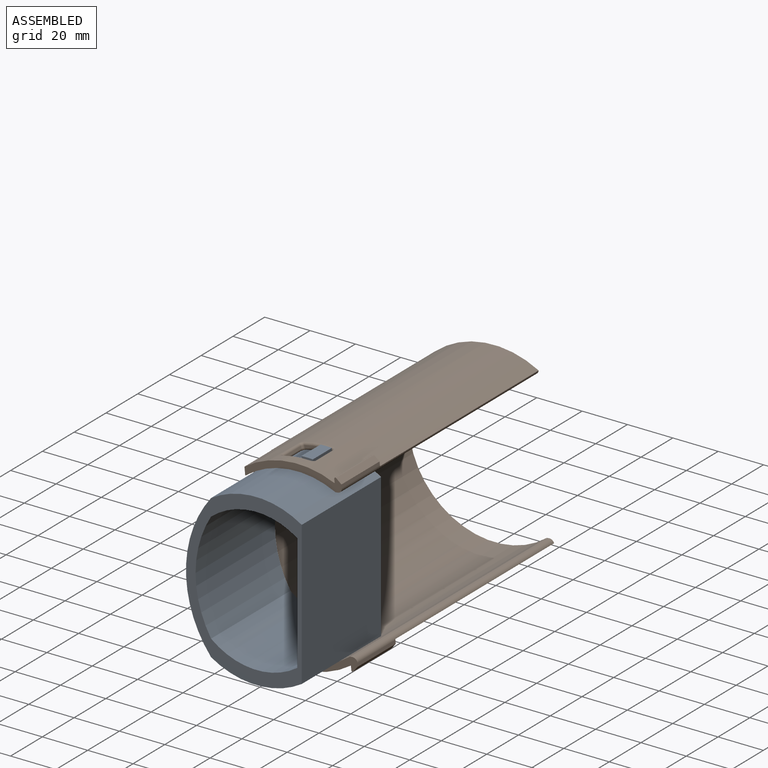
[diagram: assembled view]
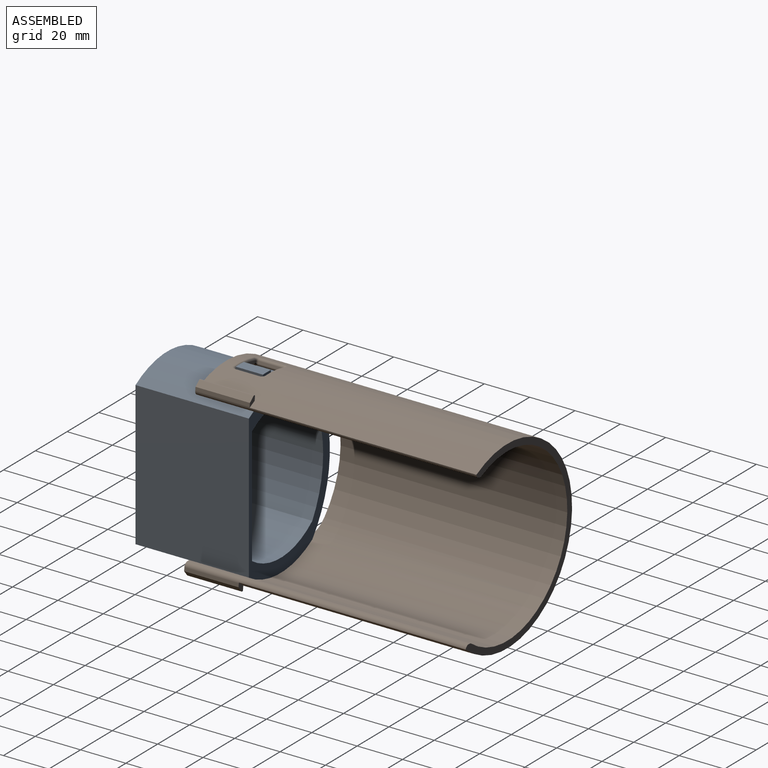
[diagram: assembled view, second angle]
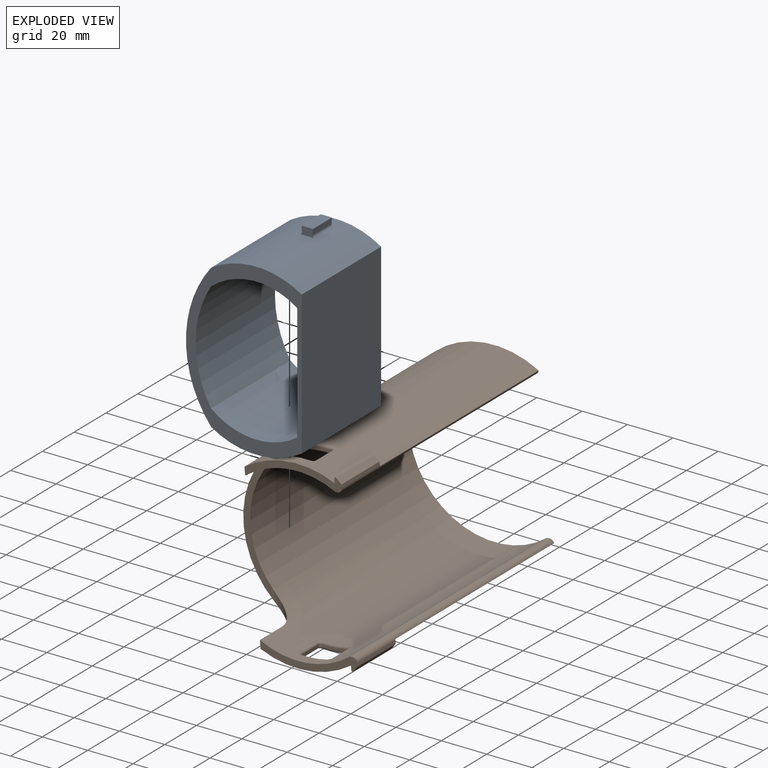
[diagram: exploded view]
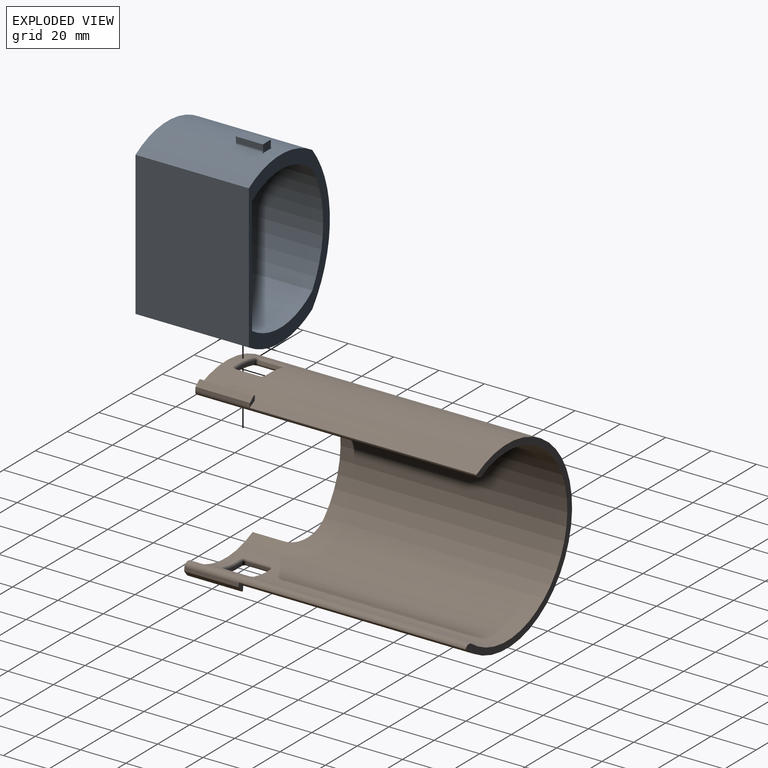
[diagram: exploded view, second angle]
ASSEMBLY  parts=2 mates=2
PART A: 17 faces, bbox 51.1x50x78.5 mm
  f0: cylinder r=37.5mm len=50mm, axis (0,1,0), area 2031.2mm2, adj f1,f2,f4,f5,f10,f11,f15,f16
  f1: plane 75x51.05mm, normal (0,-1,0), area 866.6mm2, adj f0,f3,f4,f5,f6,f7,f8,f9
  f2: plane 75x51.05mm, normal (0,1,0), area 866.6mm2, adj f0,f3,f4,f5,f6,f7,f8,f9
  f3: cylinder r=37.5mm len=50mm, axis (0,1,0), area 2109.5mm2, adj f1,f2,f4,f5
  f4: plane 63.44x50mm, normal (1,0,0), area 3172.1mm2, adj f0,f1,f2,f3
  f5: cylinder r=51.05mm len=63.44mm, axis (0,1,0), area 3422.9mm2, adj f0,f1,f2,f3
  f6: cylinder r=31.5mm len=50mm, axis (0,1,0), area 2041.4mm2, adj f1,f2,f7,f9
  f7: plane 51.7x50mm, normal (-1,0,0), area 2585.1mm2, adj f1,f2,f6,f8
  f8: cylinder r=31.5mm len=50mm, axis (0,1,0), area 2041.4mm2, adj f1,f2,f7,f9
  f9: cylinder r=46.82mm len=50mm, axis (0,1,0), area 2559.2mm2, adj f1,f2,f6,f8
  f10: plane 6.52x3.64mm, normal (0,1,0), area 17.2mm2, adj f0,f12,f13,f14,f15,f16
  f11: plane 6.52x3.64mm, normal (0,-1,0), area 17.2mm2, adj f0,f12,f13,f14,f15,f16
  f12: cylinder r=41mm len=12mm, axis (0,-1,0), area 60.1mm2, adj f10,f11,f13,f14
  f13: plane 12x2.51mm, normal (1,0,-0.06), area 30.2mm2, adj f10,f11,f12,f16
  f14: plane 12x2.51mm, normal (-1,0,-0.06), area 30.2mm2, adj f10,f11,f12,f15
  f15: cylinder r=1mm len=12mm, axis (0,1,0), area 18.5mm2, adj f0,f10,f11,f14
  f16: cylinder r=1mm len=12mm, axis (0,1,0), area 18.5mm2, adj f0,f10,f11,f13
PART B: 72 faces, bbox 63.8x124x82.5 mm
  f0: plane 55.3x10.8mm, normal (0,-1,0), area 165.5mm2, adj f1,f2,f70,f71
  f1: cylinder r=37.8mm len=124mm, axis (0,1,0), area 17731.3mm2, adj f0,f8,f9,f10,f16,f17,f18,f19
  f2: cylinder r=40.8mm len=124mm, axis (0,1,0), area 19288.1mm2, adj f0,f3,f7,f8,f10,f11,f21,f26
  f3: cylinder r=2mm len=124mm, axis (0,1,0), area 353.4mm2, adj f2,f4,f9,f10,f11,f38
  f4: plane 24x1.49mm, normal (1,0,0), area 35.8mm2, adj f3,f5,f10,f11
  f5: plane 24x2.16mm, normal (0.71,0,0.71), area 73.1mm2, adj f4,f6,f10,f11
  f6: cylinder r=0.5mm len=24mm, axis (0,1,0), area 28.3mm2, adj f5,f7,f10,f11
  f7: plane 24x1.81mm, normal (-1,0,0), area 43.4mm2, adj f2,f6,f10,f11
  f8: plane 14x3.49mm, normal (-1,0,0), area 48.8mm2, adj f1,f2,f10,f70
  f9: plane 124x1.01mm, normal (0,0,-1), area 125.1mm2, adj f1,f3,f10,f38
  f10: plane 43.01x8.72mm, normal (0,-1,0), area 139.8mm2, adj f1,f2,f3,f4,f5,f6,f7,f8
  f11: plane 4.15x3.01mm, normal (0,1,0), area 6.9mm2, adj f2,f3,f4,f5,f6,f7
  f12: plane 11.85x1.43mm, normal (0,-1,0), area 11.7mm2, adj f16,f20,f21,f22
  f13: plane 11.85x1.43mm, normal (0,1,0), area 11.7mm2, adj f24,f29,f32,f35
  f14: plane 10.6x0.99mm, normal (0.98,0,0.17), area 10.6mm2, adj f22,f23,f31,f32
  f15: plane 10.6x0.99mm, normal (-0.98,0,0.17), area 10.6mm2, adj f19,f20,f29,f30
  f16: torus R=38.8mm, axis (0,1,0), area 17.8mm2, adj f1,f12,f17,f18
  f17: bspline ~2.45x2.25mm, area 3.3mm2, adj f1,f16,f19,f20
  f18: bspline ~2.35x2.34mm, area 3.3mm2, adj f1,f16,f22,f23
  f19: cylinder r=1mm len=10.6mm, axis (0,1,0), area 16.4mm2, adj f1,f15,f17,f25
  f20: cylinder r=1mm len=1.16mm, axis (0.17,0,0.98), area 1.6mm2, adj f12,f15,f17,f26
  f21: torus R=39.8mm, axis (0,1,0), area 19mm2, adj f2,f12,f26,f27
  f22: cylinder r=1mm len=1.16mm, axis (0.17,0,-0.98), area 1.6mm2, adj f12,f14,f18,f27
  f23: cylinder r=1mm len=10.6mm, axis (0,1,0), area 16.4mm2, adj f1,f14,f18,f28
  f24: torus R=38.8mm, axis (0,-1,0), area 17.8mm2, adj f1,f13,f25,f28
  f25: bspline ~2.35x2.34mm, area 3.3mm2, adj f1,f19,f24,f29
  f26: bspline ~2.47x2.34mm, area 3.4mm2, adj f2,f20,f21,f30
  f27: bspline ~2.45x2.37mm, area 3.4mm2, adj f2,f21,f22,f31
  f28: bspline ~2.45x2.25mm, area 3.3mm2, adj f1,f23,f24,f32
  f29: cylinder r=1mm len=1.16mm, axis (-0.17,0,-0.98), area 1.6mm2, adj f13,f15,f25,f33
  f30: cylinder r=1mm len=10.6mm, axis (0,1,0), area 16.9mm2, adj f2,f15,f26,f33
  f31: cylinder r=1mm len=10.6mm, axis (0,1,0), area 16.9mm2, adj f2,f14,f27,f34
  f32: cylinder r=1mm len=1.16mm, axis (-0.17,0,0.98), area 1.6mm2, adj f13,f14,f28,f34
  f33: bspline ~2.45x2.37mm, area 3.4mm2, adj f2,f29,f30,f35
  f34: bspline ~2.47x2.34mm, area 3.4mm2, adj f2,f31,f32,f35
  f35: torus R=39.8mm, axis (0,-1,0), area 19mm2, adj f2,f13,f33,f34
  f36: plane 124x1.01mm, normal (0,0,1), area 125.1mm2, adj f1,f37,f38,f44
  f37: cylinder r=2mm len=124mm, axis (0,-1,0), area 353.4mm2, adj f2,f36,f38,f43,f44,f45
  f38: plane 81.6x63.78mm, normal (0,1,0), area 510.1mm2, adj f1,f2,f3,f9,f36,f37
  f39: plane 14x3.49mm, normal (-1,0,0), area 48.8mm2, adj f1,f2,f44,f71
  f40: plane 24x1.81mm, normal (-1,0,0), area 43.4mm2, adj f2,f41,f44,f45
  f41: cylinder r=0.5mm len=24mm, axis (0,1,0), area 28.3mm2, adj f40,f42,f44,f45
  f42: plane 24x2.16mm, normal (0.71,0,-0.71), area 73.1mm2, adj f41,f43,f44,f45
  f43: plane 24x1.49mm, normal (1,0,0), area 35.8mm2, adj f37,f42,f44,f45
  f44: plane 43.01x8.72mm, normal (0,-1,0), area 139.8mm2, adj f1,f2,f36,f37,f39,f40,f41,f42
  f45: plane 4.15x3.01mm, normal (0,1,0), area 6.9mm2, adj f2,f37,f40,f41,f42,f43
  f46: plane 11.85x1.43mm, normal (0,1,0), area 11.7mm2, adj f50,f53,f57,f58
  f47: plane 11.85x1.43mm, normal (0,-1,0), area 11.7mm2, adj f55,f64,f65,f69
  f48: plane 10.6x0.99mm, normal (-0.98,0,-0.17), area 10.6mm2, adj f53,f54,f63,f64
  f49: plane 10.6x0.99mm, normal (0.98,0,-0.17), area 10.6mm2, adj f56,f57,f65,f66
  f50: torus R=39.8mm, axis (0,1,0), area 19mm2, adj f2,f46,f51,f52
  f51: bspline ~2.34x2.23mm, area 3.4mm2, adj f2,f50,f53,f54
  f52: bspline ~2.45x2.37mm, area 3.4mm2, adj f2,f50,f56,f57
  f53: cylinder r=1mm len=1.16mm, axis (0.17,0,-0.98), area 1.6mm2, adj f46,f48,f51,f59
  f54: cylinder r=1mm len=10.6mm, axis (0,1,0), area 16.9mm2, adj f2,f48,f51,f60
  f55: torus R=39.8mm, axis (0,-1,0), area 19mm2, adj f2,f47,f60,f61
  f56: cylinder r=1mm len=10.6mm, axis (0,1,0), area 16.9mm2, adj f2,f49,f52,f61
  f57: cylinder r=1mm len=1.16mm, axis (0.17,0,0.98), area 1.6mm2, adj f46,f49,f52,f62
  f58: torus R=38.8mm, axis (0,1,0), area 17.8mm2, adj f1,f46,f59,f62
  f59: bspline ~2.45x2.25mm, area 3.3mm2, adj f1,f53,f58,f63
  f60: bspline ~2.45x2.37mm, area 3.4mm2, adj f2,f54,f55,f64
  f61: bspline ~2.34x2.23mm, area 3.4mm2, adj f2,f55,f56,f65
  f62: bspline ~2.35x2.34mm, area 3.3mm2, adj f1,f57,f58,f66
  f63: cylinder r=1mm len=10.6mm, axis (0,1,0), area 16.4mm2, adj f1,f48,f59,f67
  f64: cylinder r=1mm len=1.16mm, axis (-0.17,0,0.98), area 1.6mm2, adj f47,f48,f60,f67
  f65: cylinder r=1mm len=1.16mm, axis (-0.17,0,-0.98), area 1.6mm2, adj f47,f49,f61,f68
  f66: cylinder r=1mm len=10.6mm, axis (0,1,0), area 16.4mm2, adj f1,f49,f62,f68
  f67: bspline ~2.35x2.34mm, area 3.3mm2, adj f1,f63,f64,f69
  f68: bspline ~2.45x2.25mm, area 3.3mm2, adj f1,f65,f66,f69
  f69: torus R=38.8mm, axis (0,-1,0), area 17.8mm2, adj f1,f47,f67,f68
  f70: cylinder r=10mm len=12.57mm, axis (0,0,1), area 59.9mm2, adj f0,f1,f2,f8
  f71: cylinder r=10mm len=12.57mm, axis (0,0,1), area 59.9mm2, adj f0,f1,f2,f39
PLACE A rot(axis=(0,1,0),0deg) t=(5.41,0,0)mm
PLACE B rot(axis=(0,-1,0),5.8deg) t=(5.41,0,0)mm
MATE cylindrical B.f1 <-> A.f0  axis (0,1,0) through (5.41,38,0)mm
MATE planar A.f2 <-> B.f0  axis (0,1,0) through (0,0,0)mm
